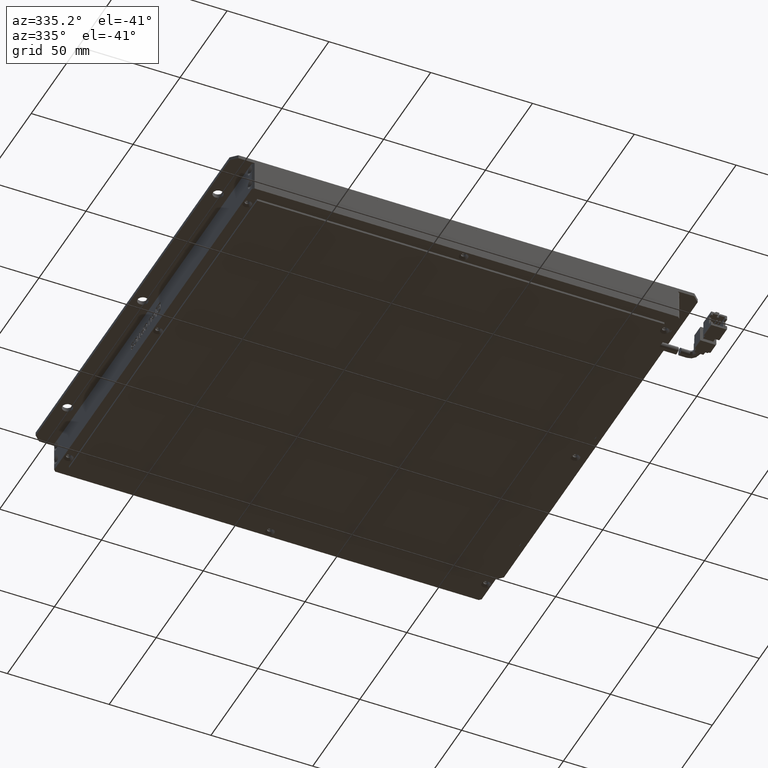
[diagram: clean part render]
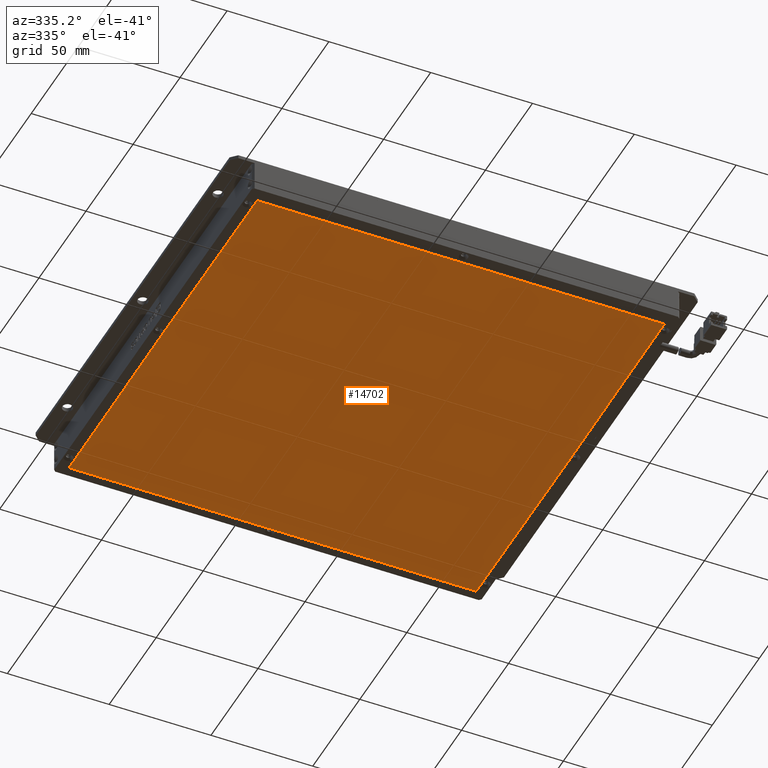
[diagram: same view with one face highlighted and labeled with its STEP entity id]
A machine part, auxiliary view. The second image highlights one B-rep face of the part: STEP entity #14702.
In plain terms, the highlighted planar face has unit normal (0, 0, -1).
Its self-contained STEP definition (entity closure, byte-faithful):
#1064 = CARTESIAN_POINT ( 'NONE',  ( 118.6657505824761500, 66.62124601721919200, -16.00000000002364300 ) ) ;
#1360 = LINE ( 'NONE', #6148, #20893 ) ;
#1445 = VECTOR ( 'NONE', #10699, 1000.000000000000000 ) ;
#1948 = EDGE_CURVE ( 'NONE', #18244, #3040, #1360, .T. ) ;
#2052 = ORIENTED_EDGE ( 'NONE', *, *, #19670, .T. ) ;
#2740 = CARTESIAN_POINT ( 'NONE',  ( -81.63424941752812500, -33.37875398278074400, -16.00000000002364300 ) ) ;
#3040 = VERTEX_POINT ( 'NONE', #14737 ) ;
#3271 = DIRECTION ( 'NONE',  ( -0.002999986500133813800, -0.9999955000303746300, -0.0000000000000000000 ) ) ;
#3633 = EDGE_LOOP ( 'NONE', ( #18438, #22147, #13308, #9580, #14559, #2052 ) ) ;
#3666 = CARTESIAN_POINT ( 'NONE',  ( 118.9657505824804200, -33.37875398278068700, -16.00000000002364300 ) ) ;
#4050 = CARTESIAN_POINT ( 'NONE',  ( 118.6657505824761500, -133.3787539827806900, -16.00000000002364300 ) ) ;
#4464 = DIRECTION ( 'NONE',  ( -1.000000000000000000, -5.551115123125782700E-016, 0.0000000000000000000 ) ) ;
#4657 = VECTOR ( 'NONE', #3271, 1000.000000000000200 ) ;
#4667 = VERTEX_POINT ( 'NONE', #10873 ) ;
#5064 = EDGE_CURVE ( 'NONE', #7247, #4667, #8174, .T. ) ;
#5077 = EDGE_CURVE ( 'NONE', #20458, #18244, #7904, .T. ) ;
#5288 = EDGE_CURVE ( 'NONE', #4667, #12065, #12827, .T. ) ;
#5930 = LINE ( 'NONE', #1064, #9996 ) ;
#6148 = CARTESIAN_POINT ( 'NONE',  ( 118.6657505824761500, -133.3787539827806900, -16.00000000002364300 ) ) ;
#6207 = CARTESIAN_POINT ( 'NONE',  ( 118.6657505824761500, 66.62124601721919200, -16.00000000002364300 ) ) ;
#7247 = VERTEX_POINT ( 'NONE', #2740 ) ;
#7904 = LINE ( 'NONE', #10246, #4657 ) ;
#8174 = LINE ( 'NONE', #11769, #18502 ) ;
#9018 = FACE_OUTER_BOUND ( 'NONE', #3633, .T. ) ;
#9050 = DIRECTION ( 'NONE',  ( 0.0000000000000000000, 0.0000000000000000000, -1.000000000000000000 ) ) ;
#9198 = PLANE ( 'NONE',  #9366 ) ;
#9366 = AXIS2_PLACEMENT_3D ( 'NONE', #19476, #9050, #10819 ) ;
#9580 = ORIENTED_EDGE ( 'NONE', *, *, #5077, .T. ) ;
#9996 = VECTOR ( 'NONE', #15048, 1000.000000000000200 ) ;
#10246 = CARTESIAN_POINT ( 'NONE',  ( 118.6657505824761500, -133.3787539827806900, -16.00000000002364300 ) ) ;
#10699 = DIRECTION ( 'NONE',  ( 1.000000000000000000, 6.938893903907228400E-017, -0.0000000000000000000 ) ) ;
#10819 = DIRECTION ( 'NONE',  ( -1.000000000000000000, 0.0000000000000000000, -0.0000000000000000000 ) ) ;
#10873 = CARTESIAN_POINT ( 'NONE',  ( -81.33424941752386400, 66.62124601721917800, -16.00000000002364300 ) ) ;
#11769 = CARTESIAN_POINT ( 'NONE',  ( -81.33424941752386400, 66.62124601721917800, -16.00000000002364300 ) ) ;
#12065 = VERTEX_POINT ( 'NONE', #6207 ) ;
#12827 = LINE ( 'NONE', #14363, #1445 ) ;
#13308 = ORIENTED_EDGE ( 'NONE', *, *, #16004, .T. ) ;
#14363 = CARTESIAN_POINT ( 'NONE',  ( 118.6657505824761500, 66.62124601721919200, -16.00000000002364300 ) ) ;
#14559 = ORIENTED_EDGE ( 'NONE', *, *, #1948, .T. ) ;
#14702 = ADVANCED_FACE ( 'NONE', ( #9018 ), #9198, .T. ) ;
#14737 = CARTESIAN_POINT ( 'NONE',  ( -81.33424941752386400, -133.3787539827808100, -16.00000000002364300 ) ) ;
#15048 = DIRECTION ( 'NONE',  ( 0.002999986500133818500, -0.9999955000303746300, 0.0000000000000000000 ) ) ;
#15380 = DIRECTION ( 'NONE',  ( 0.002999986500133816800, 0.9999955000303746300, -0.0000000000000000000 ) ) ;
#16004 = EDGE_CURVE ( 'NONE', #12065, #20458, #5930, .T. ) ;
#16621 = CARTESIAN_POINT ( 'NONE',  ( -81.33424941752386400, -133.3787539827808100, -16.00000000002364300 ) ) ;
#17446 = LINE ( 'NONE', #16621, #22364 ) ;
#18125 = DIRECTION ( 'NONE',  ( -0.002999986500133812500, 0.9999955000303746300, 0.0000000000000000000 ) ) ;
#18244 = VERTEX_POINT ( 'NONE', #4050 ) ;
#18438 = ORIENTED_EDGE ( 'NONE', *, *, #5064, .T. ) ;
#18502 = VECTOR ( 'NONE', #15380, 1000.000000000000100 ) ;
#19476 = CARTESIAN_POINT ( 'NONE',  ( 0.0000000000000000000, 0.0000000000000000000, -16.00000000002364300 ) ) ;
#19670 = EDGE_CURVE ( 'NONE', #3040, #7247, #17446, .T. ) ;
#20458 = VERTEX_POINT ( 'NONE', #3666 ) ;
#20893 = VECTOR ( 'NONE', #4464, 1000.000000000000000 ) ;
#22147 = ORIENTED_EDGE ( 'NONE', *, *, #5288, .T. ) ;
#22364 = VECTOR ( 'NONE', #18125, 1000.000000000000200 ) ;